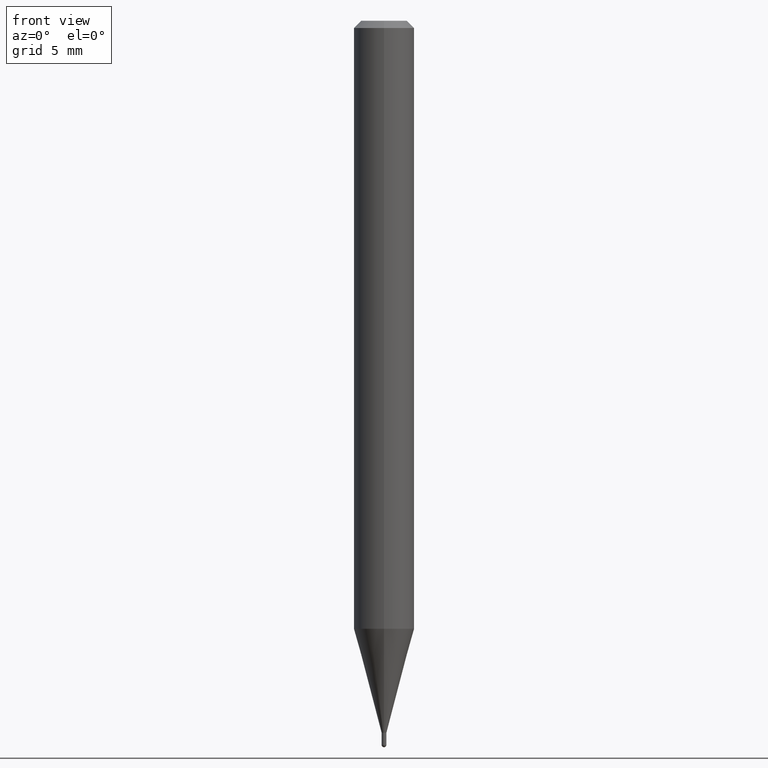
[diagram: clean part render]
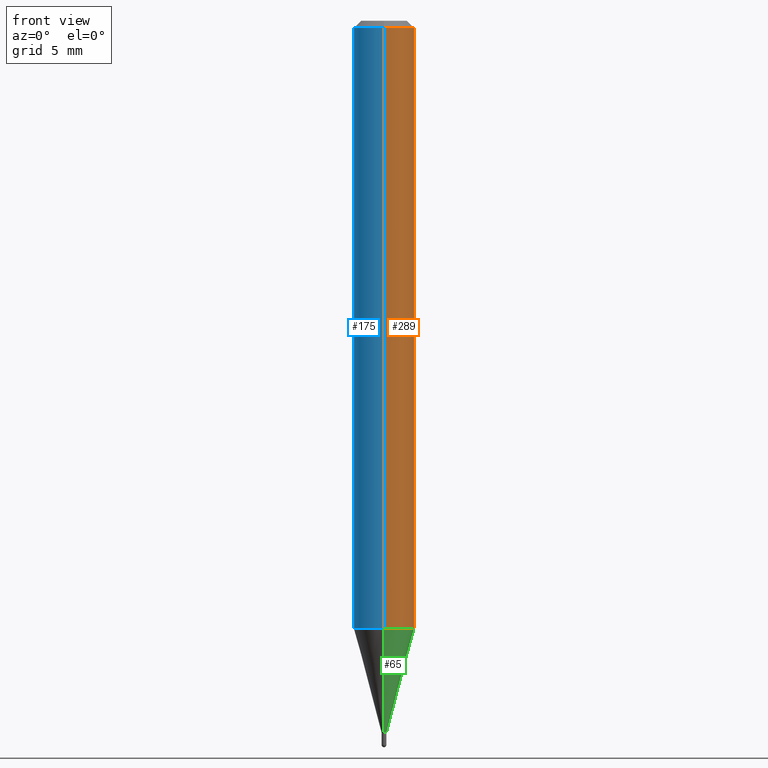
[diagram: same view with three faces highlighted in distinct colors, each labeled with its STEP entity id]
A machine part, front view with three faces highlighted in distinct colors.
Their STEP definitions:

[orange] entity #289 — the highlighted cylindrical surface (edge-blend (fillet) strip) has radius 1.5875 mm, axis along (-0, 0, 1).
#40 = EDGE_CURVE ( 'NONE', #374, #471, #82, .T. ) ;
#50 = VECTOR ( 'NONE', #491, 39.37007874015748143 ) ;
#54 = VERTEX_POINT ( 'NONE', #234 ) ;
#55 = FACE_OUTER_BOUND ( 'NONE', #296, .T. ) ;
#57 = CIRCLE ( 'NONE', #381, 0.06250000000000000000 ) ;
#60 = DIRECTION ( 'NONE',  ( -2.445144721628923764E-29, 3.491945446373389387E-15, 1.000000000000000000 ) ) ;
#63 = CARTESIAN_POINT ( 'NONE',  ( -4.364351673553912750E-16, -0.06250000000000005551, -0.01499999999999979128 ) ) ;
#71 = DIRECTION ( 'NONE',  ( -6.982962677686265922E-15, -1.000000000000000000, 3.483106191921935554E-15 ) ) ;
#82 = CIRCLE ( 'NONE', #224, 0.06250000000000000000 ) ;
#109 = ORIENTED_EDGE ( 'NONE', *, *, #394, .T. ) ;
#114 = AXIS2_PLACEMENT_3D ( 'NONE', #456, #60, #218 ) ;
#128 = CARTESIAN_POINT ( 'NONE',  ( 4.440892098500625669E-16, 0.06250000000000000000, -2.182465903983368367E-16 ) ) ;
#132 = LINE ( 'NONE', #128, #50 ) ;
#135 = CARTESIAN_POINT ( 'NONE',  ( -4.364351673553916201E-16, -0.06250000000000000000, 2.182465903983368367E-16 ) ) ;
#177 = ORIENTED_EDGE ( 'NONE', *, *, #40, .F. ) ;
#212 = LINE ( 'NONE', #135, #225 ) ;
#218 = DIRECTION ( 'NONE',  ( -6.982962677686265922E-15, -1.000000000000000000, 3.491945446373389387E-15 ) ) ;
#221 = CYLINDRICAL_SURFACE ( 'NONE', #114, 0.06250000000000000000 ) ;
#224 = AXIS2_PLACEMENT_3D ( 'NONE', #468, #431, #71 ) ;
#225 = VECTOR ( 'NONE', #295, 39.37007874015748143 ) ;
#233 = CARTESIAN_POINT ( 'NONE',  ( 4.440892098500934804E-16, 0.06249999999999995143, -0.01500000000000022669 ) ) ;
#234 = CARTESIAN_POINT ( 'NONE',  ( -4.364351673553610024E-16, -0.06250000000000439926, -1.255407078564795942 ) ) ;
#243 = DIRECTION ( 'NONE',  ( -6.982962677686265922E-15, -1.000000000000000000, 4.370956789862821150E-15 ) ) ;
#266 = EDGE_CURVE ( 'NONE', #54, #292, #57, .T. ) ;
#281 = DIRECTION ( 'NONE',  ( -2.445144721628923764E-29, 3.491945446373389387E-15, 1.000000000000000000 ) ) ;
#289 = ADVANCED_FACE ( 'NONE', ( #55 ), #221, .T. ) ;
#292 = VERTEX_POINT ( 'NONE', #378 ) ;
#295 = DIRECTION ( 'NONE',  ( -2.445144721628923764E-29, 3.491945446373389387E-15, 1.000000000000000000 ) ) ;
#296 = EDGE_LOOP ( 'NONE', ( #494, #109, #177, #344 ) ) ;
#317 = CARTESIAN_POINT ( 'NONE',  ( 3.069651991648299295E-29, -4.383813031339259395E-15, -1.255407078564796164 ) ) ;
#344 = ORIENTED_EDGE ( 'NONE', *, *, #409, .F. ) ;
#374 = VERTEX_POINT ( 'NONE', #63 ) ;
#378 = CARTESIAN_POINT ( 'NONE',  ( 4.440892098500931845E-16, 0.06249999999999560074, -1.255407078564796608 ) ) ;
#381 = AXIS2_PLACEMENT_3D ( 'NONE', #317, #281, #243 ) ;
#394 = EDGE_CURVE ( 'NONE', #292, #471, #132, .T. ) ;
#409 = EDGE_CURVE ( 'NONE', #54, #374, #212, .T. ) ;
#431 = DIRECTION ( 'NONE',  ( -2.445144721628923764E-29, 3.491945446373389387E-15, 1.000000000000000000 ) ) ;
#456 = CARTESIAN_POINT ( 'NONE',  ( 0.000000000000000000, 0.000000000000000000, 0.000000000000000000 ) ) ;
#468 = CARTESIAN_POINT ( 'NONE',  ( 3.667717082443388186E-31, -5.237918169560087014E-17, -0.01500000000000000812 ) ) ;
#471 = VERTEX_POINT ( 'NONE', #233 ) ;
#491 = DIRECTION ( 'NONE',  ( -2.445144721628923764E-29, 3.491945446373389387E-15, 1.000000000000000000 ) ) ;
#494 = ORIENTED_EDGE ( 'NONE', *, *, #266, .T. ) ;

[blue] entity #175 — the highlighted cylindrical surface (edge-blend (fillet) strip) has radius 1.5875 mm, axis along (-0, 0, 1).
#50 = VECTOR ( 'NONE', #491, 39.37007874015748143 ) ;
#54 = VERTEX_POINT ( 'NONE', #234 ) ;
#63 = CARTESIAN_POINT ( 'NONE',  ( -4.364351673553912750E-16, -0.06250000000000005551, -0.01499999999999979128 ) ) ;
#66 = AXIS2_PLACEMENT_3D ( 'NONE', #264, #329, #452 ) ;
#85 = DIRECTION ( 'NONE',  ( -6.982962677686265922E-15, -1.000000000000000000, 3.491945446373389387E-15 ) ) ;
#128 = CARTESIAN_POINT ( 'NONE',  ( 4.440892098500625669E-16, 0.06250000000000000000, -2.182465903983368367E-16 ) ) ;
#132 = LINE ( 'NONE', #128, #50 ) ;
#135 = CARTESIAN_POINT ( 'NONE',  ( -4.364351673553916201E-16, -0.06250000000000000000, 2.182465903983368367E-16 ) ) ;
#174 = EDGE_LOOP ( 'NONE', ( #186, #331, #453, #499 ) ) ;
#175 = ADVANCED_FACE ( 'NONE', ( #438 ), #204, .T. ) ;
#186 = ORIENTED_EDGE ( 'NONE', *, *, #394, .F. ) ;
#193 = AXIS2_PLACEMENT_3D ( 'NONE', #418, #368, #488 ) ;
#204 = CYLINDRICAL_SURFACE ( 'NONE', #355, 0.06250000000000000000 ) ;
#212 = LINE ( 'NONE', #135, #225 ) ;
#225 = VECTOR ( 'NONE', #295, 39.37007874015748143 ) ;
#233 = CARTESIAN_POINT ( 'NONE',  ( 4.440892098500934804E-16, 0.06249999999999995143, -0.01500000000000022669 ) ) ;
#234 = CARTESIAN_POINT ( 'NONE',  ( -4.364351673553610024E-16, -0.06250000000000439926, -1.255407078564795942 ) ) ;
#264 = CARTESIAN_POINT ( 'NONE',  ( 3.069651991648299295E-29, -4.383813031339259395E-15, -1.255407078564796164 ) ) ;
#277 = CIRCLE ( 'NONE', #193, 0.06250000000000000000 ) ;
#292 = VERTEX_POINT ( 'NONE', #378 ) ;
#295 = DIRECTION ( 'NONE',  ( -2.445144721628923764E-29, 3.491945446373389387E-15, 1.000000000000000000 ) ) ;
#329 = DIRECTION ( 'NONE',  ( -2.445144721628923764E-29, 3.491945446373389387E-15, 1.000000000000000000 ) ) ;
#331 = ORIENTED_EDGE ( 'NONE', *, *, #361, .T. ) ;
#355 = AXIS2_PLACEMENT_3D ( 'NONE', #477, #408, #85 ) ;
#361 = EDGE_CURVE ( 'NONE', #292, #54, #449, .T. ) ;
#368 = DIRECTION ( 'NONE',  ( -2.445144721628923764E-29, 3.491945446373389387E-15, 1.000000000000000000 ) ) ;
#374 = VERTEX_POINT ( 'NONE', #63 ) ;
#378 = CARTESIAN_POINT ( 'NONE',  ( 4.440892098500931845E-16, 0.06249999999999560074, -1.255407078564796608 ) ) ;
#383 = EDGE_CURVE ( 'NONE', #471, #374, #277, .T. ) ;
#394 = EDGE_CURVE ( 'NONE', #292, #471, #132, .T. ) ;
#408 = DIRECTION ( 'NONE',  ( -2.445144721628923764E-29, 3.491945446373389387E-15, 1.000000000000000000 ) ) ;
#409 = EDGE_CURVE ( 'NONE', #54, #374, #212, .T. ) ;
#418 = CARTESIAN_POINT ( 'NONE',  ( 3.667717082443388186E-31, -5.237918169560087014E-17, -0.01500000000000000812 ) ) ;
#438 = FACE_OUTER_BOUND ( 'NONE', #174, .T. ) ;
#449 = CIRCLE ( 'NONE', #66, 0.06250000000000000000 ) ;
#452 = DIRECTION ( 'NONE',  ( -6.982962677686265922E-15, -1.000000000000000000, 4.370956789862821150E-15 ) ) ;
#453 = ORIENTED_EDGE ( 'NONE', *, *, #409, .T. ) ;
#471 = VERTEX_POINT ( 'NONE', #233 ) ;
#477 = CARTESIAN_POINT ( 'NONE',  ( 0.000000000000000000, 0.000000000000000000, 0.000000000000000000 ) ) ;
#488 = DIRECTION ( 'NONE',  ( -6.982962677686265922E-15, -1.000000000000000000, 3.483106191921935554E-15 ) ) ;
#491 = DIRECTION ( 'NONE',  ( -2.445144721628923764E-29, 3.491945446373389387E-15, 1.000000000000000000 ) ) ;
#499 = ORIENTED_EDGE ( 'NONE', *, *, #383, .F. ) ;

[green] entity #65 — the highlighted conical surface has half-angle 15 deg.
#25 = AXIS2_PLACEMENT_3D ( 'NONE', #508, #393, #77 ) ;
#26 = LINE ( 'NONE', #429, #147 ) ;
#33 = VERTEX_POINT ( 'NONE', #504 ) ;
#54 = VERTEX_POINT ( 'NONE', #234 ) ;
#57 = CIRCLE ( 'NONE', #381, 0.06250000000000000000 ) ;
#65 = ADVANCED_FACE ( 'NONE', ( #195 ), #182, .T. ) ;
#77 = DIRECTION ( 'NONE',  ( -6.982962677686265922E-15, -1.000000000000000000, 0.000000000000000000 ) ) ;
#97 = AXIS2_PLACEMENT_3D ( 'NONE', #412, #372, #496 ) ;
#138 = ORIENTED_EDGE ( 'NONE', *, *, #266, .F. ) ;
#142 = ORIENTED_EDGE ( 'NONE', *, *, #198, .F. ) ;
#147 = VECTOR ( 'NONE', #226, 39.37007874015748143 ) ;
#182 = CONICAL_SURFACE ( 'NONE', #25, 0.004999999999999922042, 0.2617993877991574014 ) ;
#195 = FACE_OUTER_BOUND ( 'NONE', #459, .T. ) ;
#198 = EDGE_CURVE ( 'NONE', #215, #54, #357, .T. ) ;
#210 = VECTOR ( 'NONE', #280, 39.37007874015748854 ) ;
#215 = VERTEX_POINT ( 'NONE', #286 ) ;
#226 = DIRECTION ( 'NONE',  ( 1.839019923739649225E-15, 0.2588190451025318417, 0.9659258262890653146 ) ) ;
#234 = CARTESIAN_POINT ( 'NONE',  ( -4.364351673553610024E-16, -0.06250000000000439926, -1.255407078564795942 ) ) ;
#243 = DIRECTION ( 'NONE',  ( -6.982962677686265922E-15, -1.000000000000000000, 4.370956789862821150E-15 ) ) ;
#266 = EDGE_CURVE ( 'NONE', #54, #292, #57, .T. ) ;
#270 = CIRCLE ( 'NONE', #97, 0.004999999999999922042 ) ;
#280 = DIRECTION ( 'NONE',  ( -1.807323732225378260E-15, -0.2588190451025250693, 0.9659258262890670910 ) ) ;
#281 = DIRECTION ( 'NONE',  ( -2.445144721628923764E-29, 3.491945446373389387E-15, 1.000000000000000000 ) ) ;
#286 = CARTESIAN_POINT ( 'NONE',  ( -3.491481338839484381E-17, -0.005000000000005055088, -1.470000000000000195 ) ) ;
#292 = VERTEX_POINT ( 'NONE', #378 ) ;
#316 = EDGE_CURVE ( 'NONE', #215, #33, #270, .T. ) ;
#317 = CARTESIAN_POINT ( 'NONE',  ( 3.069651991648299295E-29, -4.383813031339259395E-15, -1.255407078564796164 ) ) ;
#318 = ORIENTED_EDGE ( 'NONE', *, *, #316, .T. ) ;
#325 = CARTESIAN_POINT ( 'NONE',  ( -3.491481338839484381E-17, -0.005000000000005055088, -1.470000000000000195 ) ) ;
#357 = LINE ( 'NONE', #325, #210 ) ;
#372 = DIRECTION ( 'NONE',  ( -2.445144721628923764E-29, 3.491945446373389387E-15, 1.000000000000000000 ) ) ;
#378 = CARTESIAN_POINT ( 'NONE',  ( 4.440892098500931845E-16, 0.06249999999999560074, -1.255407078564796608 ) ) ;
#381 = AXIS2_PLACEMENT_3D ( 'NONE', #317, #281, #243 ) ;
#393 = DIRECTION ( 'NONE',  ( -2.445144721628923764E-29, 3.491945446373389387E-15, 1.000000000000000000 ) ) ;
#412 = CARTESIAN_POINT ( 'NONE',  ( 3.594362740794518312E-29, -5.133159806168883610E-15, -1.470000000000000195 ) ) ;
#429 = CARTESIAN_POINT ( 'NONE',  ( 3.552713678804039168E-17, 0.004999999999994788995, -1.470000000000000195 ) ) ;
#437 = EDGE_CURVE ( 'NONE', #33, #292, #26, .T. ) ;
#459 = EDGE_LOOP ( 'NONE', ( #318, #489, #138, #142 ) ) ;
#489 = ORIENTED_EDGE ( 'NONE', *, *, #437, .T. ) ;
#496 = DIRECTION ( 'NONE',  ( -6.982962677686265922E-15, -1.000000000000000000, 0.000000000000000000 ) ) ;
#504 = CARTESIAN_POINT ( 'NONE',  ( 2.398081733190669607E-16, 0.004999999999994788995, -1.470000000000000195 ) ) ;
#508 = CARTESIAN_POINT ( 'NONE',  ( 3.594362740794518312E-29, -5.133159806168883610E-15, -1.470000000000000195 ) ) ;